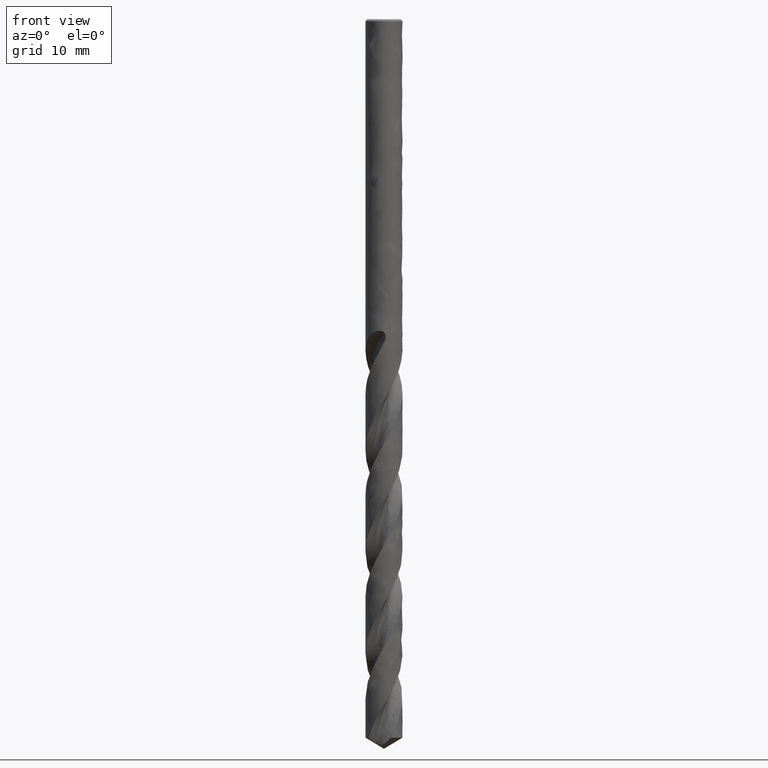
[diagram: clean part render]
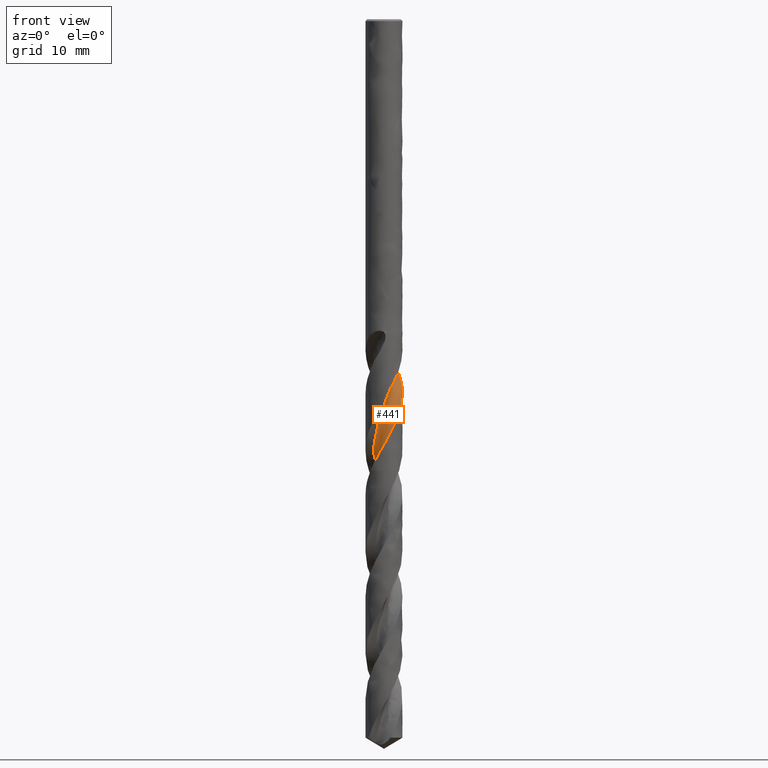
[diagram: same view with one face highlighted and labeled with its STEP entity id]
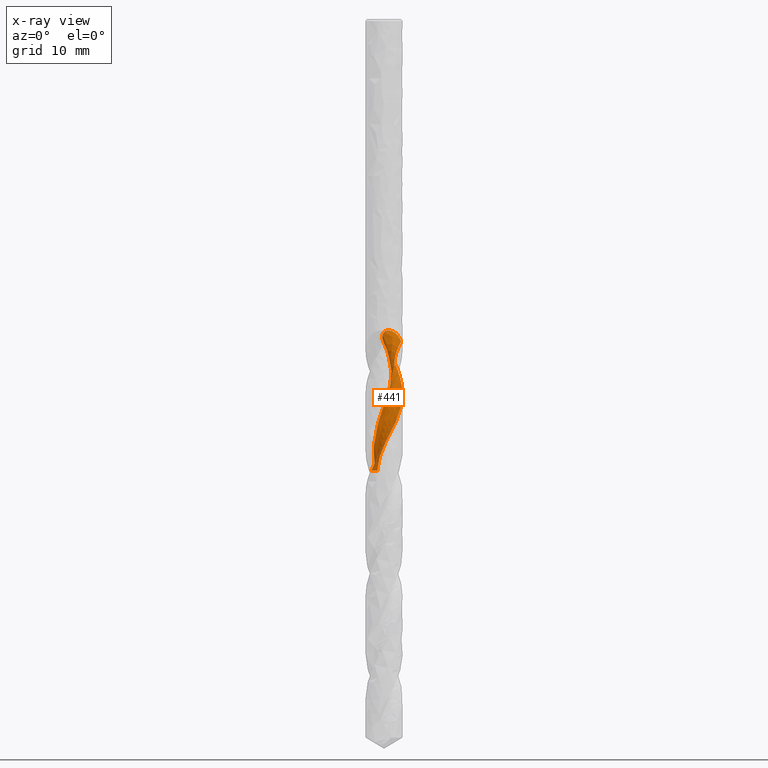
[diagram: x-ray of the same camera — body ghosted, the highlighted face saturated]
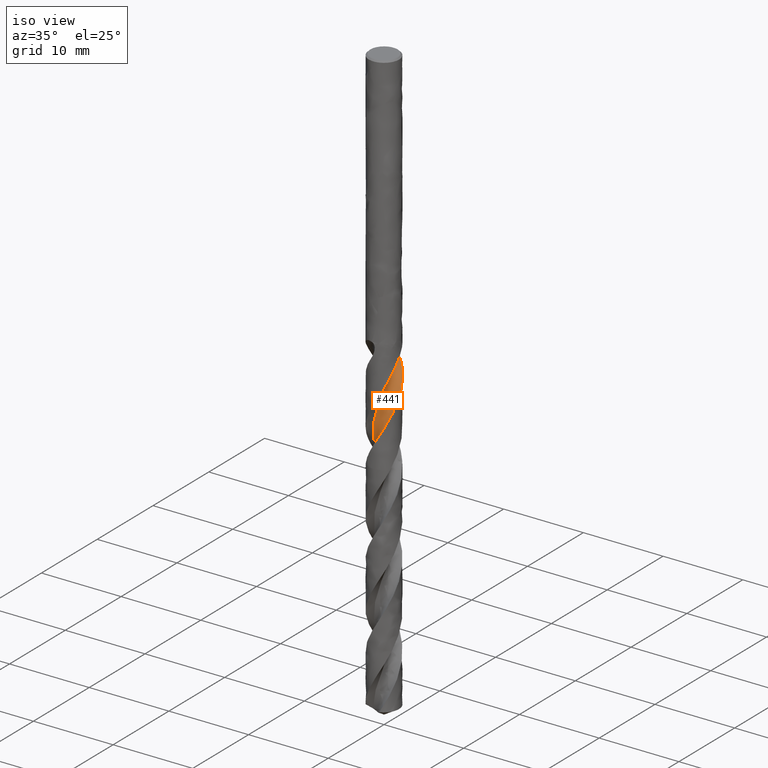
[diagram: same view with one face highlighted and labeled with its STEP entity id]
A machine part, front view. The second image highlights one B-rep face of the part: STEP entity #441.
The next image is the same camera in x-ray: the body ghosted, the highlighted face saturated — about 0% of this face is hidden behind the body in this view.
A second angle (iso view) of the same face is appended — the face is thin or edge-on in the first view.
In plain terms, the highlighted face is a freeform B-spline surface patch.
Its self-contained STEP definition (entity closure, byte-faithful):
#131 = VERTEX_POINT('', #132);
#132 = CARTESIAN_POINT('', (-0.96395103952715, 0.480244470293103, -46.4));
#138 = EDGE_CURVE('', #131, #139, #141, .T.);
#139 = VERTEX_POINT('', #140);
#140 = CARTESIAN_POINT('', (1.75888895391081, 0.718546900216404, -33.1325859257356));
#141 = (
   BOUNDED_CURVE ()
   B_SPLINE_CURVE (3, (#142, #143, #144, #145, #146, #147, #148, #149, #150, #151, #152, #153, #154, #155, #156, #157, #158, #159, #160, #161, #162, #163, #164, #165, #166, #167, #168, #169, #170, #171, #172, #173, #174, #175, #176, #177, #178, #179, #180, #181, #182, #183), .UNSPECIFIED., .F., .U.)
   B_SPLINE_CURVE_WITH_KNOTS ((4, 1, 1, 1, 1, 1, 1, 1, 1, 1, 1, 1, 1, 1, 1, 1, 1, 1, 1, 1, 1, 1, 1, 1, 1, 1, 1, 1, 1, 1, 1, 1, 1, 1, 1, 1, 1, 1, 1, 4), (28.65, 28.7, 29.05, 29.4, 29.75, 30.1, 30.45, 30.8, 31.15, 31.5, 31.85, 32.2, 32.55, 32.9, 33.25, 33.6, 33.95, 34.3, 34.65, 35., 35.35, 35.7, 36.05, 36.4, 36.75, 37.1, 37.45, 37.8, 38.15, 38.5, 38.85, 39.2, 39.55, 39.9, 40.25, 40.6, 40.95, 41.3, 41.65, 41.9174140742644), .UNSPECIFIED.)
   CURVE ()
   GEOMETRIC_REPRESENTATION_ITEM ()
   RATIONAL_B_SPLINE_CURVE ((1., 1., 1., 1., 1., 1., 1., 1., 1., 1., 1., 1., 1., 1., 1., 1., 1., 1., 1., 1., 1., 1., 1., 1., 1., 1., 1., 1., 1., 1., 1., 1., 1., 1., 1., 1., 1., 1., 1., 1., 1., 1.))
   REPRESENTATION_ITEM ('')
);
#142 = CARTESIAN_POINT('', (-0.96395103952715, 0.480244470293103, -46.4));
#143 = CARTESIAN_POINT('', (-0.966431226843995, 0.475446815710782, -46.3833333333333));
#144 = CARTESIAN_POINT('', (-0.985987603925968, 0.436912708861211, -46.25));
#145 = CARTESIAN_POINT('', (-1.01834154443304, 0.362430019029289, -46.));
#146 = CARTESIAN_POINT('', (-1.05253728804318, 0.253810498499353, -45.65));
#147 = CARTESIAN_POINT('', (-1.07522186693698, 0.142020868778604, -45.3));
#148 = CARTESIAN_POINT('', (-1.08610715577379, 0.0282732361351584, -44.95));
#149 = CARTESIAN_POINT('', (-1.08503184371034, -0.0861946915018232, -44.6));
#150 = CARTESIAN_POINT('', (-1.07196365038964, -0.200132786629288, -44.25));
#151 = CARTESIAN_POINT('', (-1.04700018064148, -0.312291870259042, -43.9));
#152 = CARTESIAN_POINT('', (-1.01036840283583, -0.42143712636716, -43.55));
#153 = CARTESIAN_POINT('', (-0.962422750057319, -0.526361421893064, -43.2));
#154 = CARTESIAN_POINT('', (-0.903641857582134, -0.625898391747234, -42.85));
#155 = CARTESIAN_POINT('', (-0.834623964395978, -0.718935150001063, -42.5));
#156 = CARTESIAN_POINT('', (-0.756081020541927, -0.804424491586876, -42.15));
#157 = CARTESIAN_POINT('', (-0.668831555806061, -0.881396453395895, -41.8));
#158 = CARTESIAN_POINT('', (-0.573792378422824, -0.948969109635665, -41.45));
#159 = CARTESIAN_POINT('', (-0.471969185241571, -1.00635848347411, -41.1));
#160 = CARTESIAN_POINT('', (-0.364446176005808, -1.05288746592981, -40.75));
#161 = CARTESIAN_POINT('', (-0.252374777674193, -1.08799364119964, -40.4));
#162 = CARTESIAN_POINT('', (-0.136961585967135, -1.11123593397627, -40.05));
#163 = CARTESIAN_POINT('', (-0.0194556725909972, -1.12229998540107, -39.7));
#164 = CARTESIAN_POINT('', (0.0988647068315025, -1.12100225426955, -39.35));
#165 = CARTESIAN_POINT('', (0.216705511023308, -1.10729256509168, -39.));
#166 = CARTESIAN_POINT('', (0.332771605402317, -1.08125591518208, -38.65));
#167 = CARTESIAN_POINT('', (0.445777640856792, -1.04311034989575, -38.3));
#168 = CARTESIAN_POINT('', (0.554473491465376, -0.993212723902288, -37.95));
#169 = CARTESIAN_POINT('', (0.65761498635233, -0.932028223480831, -37.6));
#170 = CARTESIAN_POINT('', (0.754137736913847, -0.860228377947967, -37.25));
#171 = CARTESIAN_POINT('', (0.842571239900489, -0.778302909190671, -36.9));
#172 = CARTESIAN_POINT('', (0.923285869101827, -0.687979521452447, -36.55));
#173 = CARTESIAN_POINT('', (0.9882217002667, -0.585442846305672, -36.2));
#174 = CARTESIAN_POINT('', (1.03535362662515, -0.473982204148104, -35.85));
#175 = CARTESIAN_POINT('', (1.06159972872685, -0.356036348122759, -35.5));
#176 = CARTESIAN_POINT('', (1.07290019592717, -0.239018818702713, -35.15));
#177 = CARTESIAN_POINT('', (1.12513734848633, -0.130640304414601, -34.8));
#178 = CARTESIAN_POINT('', (1.20833646070338, -0.0137219376855339, -34.45));
#179 = CARTESIAN_POINT('', (1.32371281994959, 0.123438139140174, -34.1));
#180 = CARTESIAN_POINT('', (1.46590175535279, 0.293594074871595, -33.75));
#181 = CARTESIAN_POINT('', (1.61508343432141, 0.491285643064204, -33.4275286419119));
#182 = CARTESIAN_POINT('', (1.71539066095585, 0.64573774262531, -33.2217239504904));
#183 = CARTESIAN_POINT('', (1.75888895391081, 0.718546900216421, -33.1325859257356));
#441 = ADVANCED_FACE('', (#442), #770, .T.);
#442 = FACE_OUTER_BOUND('', #443, .T.);
#443 = EDGE_LOOP('', (#444, #504, #536, #587, #598, #709, #717, #769));
#444 = ORIENTED_EDGE('', *, *, #445, .T.);
#445 = EDGE_CURVE('', #131, #446, #448, .T.);
#446 = VERTEX_POINT('', #447);
#447 = CARTESIAN_POINT('', (-1.30532827835453, -1.25478044990307, -46.4));
#448 = B_SPLINE_CURVE_WITH_KNOTS('', 3, (#449, #450, #451, #452, #453, #454, #455, #456, #457, #458, #459, #460, #461, #462, #463, #464, #465, #466, #467, #468, #469, #470, #471, #472, #473, #474, #475, #476, #477, #478, #479, #480, #481, #482, #483, #484, #485, #486, #487, #488, #489, #490, #491, #492, #493, #494, #495, #496, #497, #498, #499, #500, #501, #502, #503), .UNSPECIFIED., .F., .U., (4, 3, 3, 3, 3, 3, 3, 3, 3, 3, 3, 3, 3, 3, 3, 3, 3, 3, 4), (0., 0.132356608501196, 0.264451560484291, 0.396293066426297, 0.527887118072448, 0.659237692408685, 0.790346885663394, 0.921214986968328, 1.00846108702059, 1.03437436233622, 1.06035548475083, 1.19266228556895, 1.32470915070102, 1.45650385532039, 1.58805200006146, 1.71935720090433, 1.85042121126882, 1.9812439850686, 2.07099400403343), .UNSPECIFIED.);
#449 = CARTESIAN_POINT('', (-0.963951039527148, 0.480244470293104, -46.4));
#450 = CARTESIAN_POINT('', (-0.93337620817675, 0.448437956276507, -46.4));
#451 = CARTESIAN_POINT('', (-0.904701577701545, 0.414690118859166, -46.4));
#452 = CARTESIAN_POINT('', (-0.878249633427044, 0.379380498497402, -46.4));
#453 = CARTESIAN_POINT('', (-0.851849982148822, 0.344140681921214, -46.4));
#454 = CARTESIAN_POINT('', (-0.827565533024463, 0.30721356133876, -46.4));
#455 = CARTESIAN_POINT('', (-0.805668322057261, 0.269012796794148, -46.4));
#456 = CARTESIAN_POINT('', (-0.783813124515607, 0.230885326742587, -46.4));
#457 = CARTESIAN_POINT('', (-0.76425460743586, 0.191347156519327, -46.4));
#458 = CARTESIAN_POINT('', (-0.747211029023544, 0.150839502094262, -46.4));
#459 = CARTESIAN_POINT('', (-0.730199439829378, 0.110407876784844, -46.4));
#460 = CARTESIAN_POINT('', (-0.715630222784705, 0.0688604466918589, -46.4));
#461 = CARTESIAN_POINT('', (-0.703665351259459, 0.0266591156529382, -46.4));
#462 = CARTESIAN_POINT('', (-0.69172261732095, -0.015464133843332, -46.4));
#463 = CARTESIAN_POINT('', (-0.682330430666376, -0.0583945243317284, -46.4));
#464 = CARTESIAN_POINT('', (-0.675592824030318, -0.101656536523359, -46.4));
#465 = CARTESIAN_POINT('', (-0.668867598998108, -0.144839046730741, -46.4));
#466 = CARTESIAN_POINT('', (-0.664762408581908, -0.1885109520714, -46.4));
#467 = CARTESIAN_POINT('', (-0.663322557491968, -0.23219029121914, -46.4));
#468 = CARTESIAN_POINT('', (-0.661885354092078, -0.275789310011163, -46.4));
#469 = CARTESIAN_POINT('', (-0.663098388394375, -0.31955567628098, -46.4));
#470 = CARTESIAN_POINT('', (-0.666948322456207, -0.363008156083166, -46.4));
#471 = CARTESIAN_POINT('', (-0.669514965732941, -0.391976708102629, -46.4));
#472 = CARTESIAN_POINT('', (-0.673256418951325, -0.420864987045241, -46.4));
#473 = CARTESIAN_POINT('', (-0.678154369766236, -0.449531600755776, -46.4));
#474 = CARTESIAN_POINT('', (-0.679609127604961, -0.458045973925499, -46.4));
#475 = CARTESIAN_POINT('', (-0.681166213236623, -0.466543494769032, -46.4));
#476 = CARTESIAN_POINT('', (-0.682824953601737, -0.475020490182725, -46.4));
#477 = CARTESIAN_POINT('', (-0.684488036942424, -0.483519680380362, -46.4));
#478 = CARTESIAN_POINT('', (-0.686253548670824, -0.491999466933154, -46.4));
#479 = CARTESIAN_POINT('', (-0.68812072163303, -0.500456165186189, -46.4));
#480 = CARTESIAN_POINT('', (-0.697629151533064, -0.543521228869271, -46.4));
#481 = CARTESIAN_POINT('', (-0.709804794279774, -0.586081984030037, -46.4));
#482 = CARTESIAN_POINT('', (-0.724510820915612, -0.627660136102703, -46.4));
#483 = CARTESIAN_POINT('', (-0.739187955452942, -0.669156601932359, -46.4));
#484 = CARTESIAN_POINT('', (-0.756440321330727, -0.709829320675688, -46.4));
#485 = CARTESIAN_POINT('', (-0.776074796695074, -0.749223004582446, -46.4));
#486 = CARTESIAN_POINT('', (-0.795671777497397, -0.788541461171074, -46.4));
#487 = CARTESIAN_POINT('', (-0.817714656733881, -0.826732068508528, -46.4));
#488 = CARTESIAN_POINT('', (-0.841957626723584, -0.863368950078291, -46.4));
#489 = CARTESIAN_POINT('', (-0.866155243269478, -0.899937291830107, -46.4));
#490 = CARTESIAN_POINT('', (-0.892634387631025, -0.93509328265791, -46.4));
#491 = CARTESIAN_POINT('', (-0.92110088252602, -0.968446347485194, -46.4));
#492 = CARTESIAN_POINT('', (-0.949514805328481, -1.00173781567345, -46.4));
#493 = CARTESIAN_POINT('', (-0.980013648995523, -1.03335597925048, -46.4));
#494 = CARTESIAN_POINT('', (-1.01225982521054, -1.06295086027177, -46.4));
#495 = CARTESIAN_POINT('', (-1.04444676941785, -1.09249137936782, -46.4));
#496 = CARTESIAN_POINT('', (-1.07849303829817, -1.12012476119488, -46.4));
#497 = CARTESIAN_POINT('', (-1.1140231568604, -1.14554625447957, -46.4));
#498 = CARTESIAN_POINT('', (-1.14948787864649, -1.17092095693516, -46.4));
#499 = CARTESIAN_POINT('', (-1.18656098381313, -1.19418495735582, -46.4));
#500 = CARTESIAN_POINT('', (-1.2248351158549, -1.21508263264576, -46.4));
#501 = CARTESIAN_POINT('', (-1.25109280766832, -1.2294193318237, -46.4));
#502 = CARTESIAN_POINT('', (-1.27797026169169, -1.24267482117247, -46.4));
#503 = CARTESIAN_POINT('', (-1.30532827835453, -1.25478044990308, -46.4));
#504 = ORIENTED_EDGE('', *, *, #505, .T.);
#505 = EDGE_CURVE('', #446, #506, #508, .T.);
#506 = VERTEX_POINT('', #507);
#507 = CARTESIAN_POINT('', (1.8998305610442, -0.0253739890931736, -38.5472392469525));
#508 = B_SPLINE_CURVE_WITH_KNOTS('', 3, (#509, #510, #511, #512, #513, #514, #515, #516, #517, #518, #519, #520, #521, #522, #523, #524, #525, #526, #527, #528, #529, #530, #531, #532, #533, #534, #535), .UNSPECIFIED., .F., .U., (4, 1, 1, 1, 1, 1, 1, 1, 1, 1, 1, 1, 1, 1, 1, 1, 1, 1, 1, 1, 1, 1, 1, 1, 4), (28.65, 28.7, 29.05, 29.4, 29.75, 30.1, 30.45, 30.8, 31.15, 31.5, 31.85, 32.2, 32.55, 32.9, 33.25, 33.6, 33.95, 34.3, 34.65, 35., 35.35, 35.7, 36.05, 36.4, 36.5027607530475), .UNSPECIFIED.);
#509 = CARTESIAN_POINT('', (-1.30532827835453, -1.25478044990307, -46.4));
#510 = CARTESIAN_POINT('', (-1.2991340090144, -1.26141962647203, -46.3833333333333));
#511 = CARTESIAN_POINT('', (-1.24917662469697, -1.31416801236667, -46.25));
#512 = CARTESIAN_POINT('', (-1.1495347891777, -1.40750160411971, -46.));
#513 = CARTESIAN_POINT('', (-0.996883695823697, -1.52304942163968, -45.65));
#514 = CARTESIAN_POINT('', (-0.832705801988859, -1.62216317476124, -45.3));
#515 = CARTESIAN_POINT('', (-0.658757411542367, -1.70370144097815, -44.95));
#516 = CARTESIAN_POINT('', (-0.476907054621174, -1.76670911619367, -44.6));
#517 = CARTESIAN_POINT('', (-0.289115868538179, -1.81042837541237, -44.25));
#518 = CARTESIAN_POINT('', (-0.0974169146305664, -1.83430758318904, -43.9));
#519 = CARTESIAN_POINT('', (0.0961063563644484, -1.83800805105079, -43.55));
#520 = CARTESIAN_POINT('', (0.289342267924163, -1.82140856097256, -43.2));
#521 = CARTESIAN_POINT('', (0.480173480198611, -1.78460759680235, -42.85));
#522 = CARTESIAN_POINT('', (0.666499715821069, -1.72792324907516, -42.5));
#523 = CARTESIAN_POINT('', (0.846260410631105, -1.65189078268501, -42.15));
#524 = CARTESIAN_POINT('', (1.01745705033469, -1.55725788118361, -41.8));
#525 = CARTESIAN_POINT('', (1.17817495613689, -1.44497760571056, -41.45));
#526 = CARTESIAN_POINT('', (1.32660428651518, -1.31619913081361, -41.1));
#527 = CARTESIAN_POINT('', (1.46106003010745, -1.17225634221648, -40.75));
#528 = CARTESIAN_POINT('', (1.58000077021621, -1.01465440726805, -40.4));
#529 = CARTESIAN_POINT('', (1.6820460266266, -0.84505444004282, -40.05));
#530 = CARTESIAN_POINT('', (1.76599194300402, -0.665256443369278, -39.7));
#531 = CARTESIAN_POINT('', (1.8308252947128, -0.477180581336087, -39.35));
#532 = CARTESIAN_POINT('', (1.87573509749907, -0.282847405644915, -39.));
#533 = CARTESIAN_POINT('', (1.89438107153297, -0.13109367225475, -38.7324130823175));
#534 = CARTESIAN_POINT('', (1.89906775392138, -0.0449460119830068, -38.5814928313017));
#535 = CARTESIAN_POINT('', (1.8998305610442, -0.0253739890931695, -38.5472392469525));
#536 = ORIENTED_EDGE('', *, *, #537, .F.);
#537 = EDGE_CURVE('', #538, #506, #540, .T.);
#538 = VERTEX_POINT('', #539);
#539 = CARTESIAN_POINT('', (1.28039807057198, 1.40377376413562, -35.7397321612101));
#540 = B_SPLINE_CURVE_WITH_KNOTS('', 3, (#541, #542, #543, #544, #545, #546, #547, #548, #549, #550, #551, #552, #553, #554, #555, #556, #557, #558, #559, #560, #561, #562, #563, #564, #565, #566, #567, #568, #569, #570, #571, #572, #573, #574, #575, #576, #577, #578, #579, #580, #581, #582, #583, #584, #585, #586), .UNSPECIFIED., .F., .U., (4, 3, 3, 3, 3, 3, 3, 3, 3, 3, 3, 3, 3, 3, 3, 4), (0., 0.131367445252244, 0.426860119382218, 0.623871718991579, 0.919274784355049, 1.11624229441769, 1.31321360037919, 1.51015659043777, 1.70708407825923, 1.90400112580175, 2.19922233130223, 2.64161574660911, 3.08381642082228, 3.17134428687576, 3.21026800024567, 3.23372368174076), .UNSPECIFIED.);
#541 = CARTESIAN_POINT('', (1.28039807057198, 1.40377376413562, -35.7397321612101));
#542 = CARTESIAN_POINT('', (1.29582549604991, 1.38970223329461, -35.7782221090152));
#543 = CARTESIAN_POINT('', (1.31107073855273, 1.37533108994948, -35.8166772284345));
#544 = CARTESIAN_POINT('', (1.32612811378341, 1.36065580726107, -35.8550881780231));
#545 = CARTESIAN_POINT('', (1.35999757104315, 1.32764581367486, -35.9414882308522));
#546 = CARTESIAN_POINT('', (1.39292224788722, 1.29308647604948, -36.0276866032639));
#547 = CARTESIAN_POINT('', (1.42468727076964, 1.25708638545923, -36.113690938848));
#548 = CARTESIAN_POINT('', (1.44586572464543, 1.233084316866, -36.1710319601666));
#549 = CARTESIAN_POINT('', (1.46653253610041, 1.20843862513266, -36.2282986058287));
#550 = CARTESIAN_POINT('', (1.4866303138902, 1.18318650677857, -36.2854915142853));
#551 = CARTESIAN_POINT('', (1.51676531699596, 1.14532298410524, -36.3712476855394));
#552 = CARTESIAN_POINT('', (1.5456296330949, 1.10608395783723, -36.4568643129482));
#553 = CARTESIAN_POINT('', (1.57306290087736, 1.06558580596933, -36.5423230818583));
#554 = CARTESIAN_POINT('', (1.591354730183, 1.03858263277699, -36.5993048904409));
#555 = CARTESIAN_POINT('', (1.6090170368045, 1.01100948973066, -36.6562250600055));
#556 = CARTESIAN_POINT('', (1.62598700780901, 0.982937561819858, -36.7130992706692));
#557 = CARTESIAN_POINT('', (1.64295730585372, 0.954865092915267, -36.7699745773957));
#558 = CARTESIAN_POINT('', (1.65923739848551, 0.926288831419241, -36.8268135226904));
#559 = CARTESIAN_POINT('', (1.67475613788976, 0.897324845638732, -36.883656387646));
#560 = CARTESIAN_POINT('', (1.69027264637456, 0.868365023619059, -36.9404910810711));
#561 = CARTESIAN_POINT('', (1.70502568808182, 0.839025488572187, -36.9973470817475));
#562 = CARTESIAN_POINT('', (1.71900092597171, 0.809342830022234, -37.0542087402796));
#563 = CARTESIAN_POINT('', (1.73297506381001, 0.779662507923104, -37.1110659229839));
#564 = CARTESIAN_POINT('', (1.74617448638357, 0.749633287063078, -37.1679377158817));
#565 = CARTESIAN_POINT('', (1.75858901405916, 0.71928066818902, -37.2248018988388));
#566 = CARTESIAN_POINT('', (1.77100288356796, 0.688929658484972, -37.2816630670926));
#567 = CARTESIAN_POINT('', (1.78263519579591, 0.6582461781599, -37.3385237459266));
#568 = CARTESIAN_POINT('', (1.79346618907686, 0.627279067591219, -37.395376257296));
#569 = CARTESIAN_POINT('', (1.80970418844298, 0.580852677255572, -37.4806104569331));
#570 = CARTESIAN_POINT('', (1.82414435955775, 0.533775807445821, -37.5658542270085));
#571 = CARTESIAN_POINT('', (1.83673150133983, 0.48622771618437, -37.6510874013594));
#572 = CARTESIAN_POINT('', (1.85559352255706, 0.414976186509132, -37.7788105946668));
#573 = CARTESIAN_POINT('', (1.87030755976191, 0.342609157255745, -37.9065958761914));
#574 = CARTESIAN_POINT('', (1.88076714088389, 0.269657118896259, -38.0343235853858));
#575 = CARTESIAN_POINT('', (1.89122216499613, 0.196736864137469, -38.1619956464229));
#576 = CARTESIAN_POINT('', (1.89743358735857, 0.12317551044754, -38.2897207569544));
#577 = CARTESIAN_POINT('', (1.89935414206426, 0.0495362798699944, -38.4173937824621));
#578 = CARTESIAN_POINT('', (1.89973429086282, 0.034960352952331, -38.4426649955718));
#579 = CARTESIAN_POINT('', (1.89994664563494, 0.0203799036849946, -38.4679366816716));
#580 = CARTESIAN_POINT('', (1.89999114956294, 0.00579927430639445, -38.4932080021155));
#581 = CARTESIAN_POINT('', (1.900010940496, -0.000684743461601987, -38.5044461789132));
#582 = CARTESIAN_POINT('', (1.89999753941857, -0.00716886596041877, -38.5156844027514));
#583 = CARTESIAN_POINT('', (1.89995094764144, -0.0136527124212837, -38.5269225992309));
#584 = CARTESIAN_POINT('', (1.89992287113511, -0.017559920246082, -38.5336948091354));
#585 = CARTESIAN_POINT('', (1.89988274194958, -0.0214670401939055, -38.5404670304973));
#586 = CARTESIAN_POINT('', (1.89983056104419, -0.025373989093227, -38.5472392469526));
#587 = ORIENTED_EDGE('', *, *, #588, .T.);
#588 = EDGE_CURVE('', #538, #589, #591, .T.);
#589 = VERTEX_POINT('', #590);
#590 = CARTESIAN_POINT('', (0.864206171825234, 1.69208383142774, -34.8514155961111));
#591 = B_SPLINE_CURVE_WITH_KNOTS('', 3, (#592, #593, #594, #595, #596, #597), .UNSPECIFIED., .F., .U., (4, 1, 1, 4), (39.3102678387899, 39.55, 39.9, 40.1985844038889), .UNSPECIFIED.);
#592 = CARTESIAN_POINT('', (1.28039807057198, 1.40377376413559, -35.7397321612101));
#593 = CARTESIAN_POINT('', (1.24225099117843, 1.42978584063618, -35.6598214408068));
#594 = CARTESIAN_POINT('', (1.14507922387982, 1.48843482020702, -35.4632440537367));
#595 = CARTESIAN_POINT('', (0.993734559564485, 1.55953750087753, -35.167138532037));
#596 = CARTESIAN_POINT('', (0.904307154908509, 1.64575304747076, -34.9509437307407));
#597 = CARTESIAN_POINT('', (0.864206171825234, 1.69208383142774, -34.8514155961111));
#598 = ORIENTED_EDGE('', *, *, #599, .F.);
#599 = EDGE_CURVE('', #600, #589, #602, .T.);
#600 = VERTEX_POINT('', #601);
#601 = CARTESIAN_POINT('', (0.427751960259633, 1.8512234496392, -32.));
#602 = B_SPLINE_CURVE_WITH_KNOTS('', 3, (#603, #604, #605, #606, #607, #608, #609, #610, #611, #612, #613, #614, #615, #616, #617, #618, #619, #620, #621, #622, #623, #624, #625, #626, #627, #628, #629, #630, #631, #632, #633, #634, #635, #636, #637, #638, #639, #640, #641, #642, #643, #644, #645, #646, #647, #648, #649, #650, #651, #652, #653, #654, #655, #656, #657, #658, #659, #660, #661, #662, #663, #664, #665, #666, #667, #668, #669, #670, #671, #672, #673, #674, #675, #676, #677, #678, #679, #680, #681, #682, #683, #684, #685, #686, #687, #688, #689, #690, #691, #692, #693, #694, #695, #696, #697, #698, #699, #700, #701, #702, #703, #704, #705, #706, #707, #708), .UNSPECIFIED., .F., .U., (4, 3, 3, 3, 3, 3, 3, 3, 3, 3, 3, 3, 3, 3, 3, 3, 3, 3, 3, 3, 3, 3, 3, 3, 3, 3, 3, 3, 3, 3, 3, 3, 3, 3, 3, 4), (0., 0.0873629605212161, 0.174507815838116, 0.261410331657644, 0.319349699367411, 0.37723188191172, 0.435081472253333, 0.473752127815154, 0.512476702920778, 0.570461454747365, 0.62847253783245, 0.686531689473661, 0.773565024721625, 0.831776572720489, 0.857700674376559, 0.988843334027458, 1.12033938845752, 1.25207487416912, 1.38395532561015, 1.51590956818053, 1.64788857450238, 1.73573251009251, 1.77471080818673, 1.9067551739594, 2.03878248633691, 2.17077982768571, 2.30273736410078, 2.43465001899647, 2.56651274924828, 2.69832321369126, 2.83008418729105, 2.96179505951588, 3.09345426730499, 3.22505850398501, 3.42255413557538, 3.47636369661806), .UNSPECIFIED.);
#603 = CARTESIAN_POINT('', (0.427751960258633, 1.85122344963943, -32.));
#604 = CARTESIAN_POINT('', (0.399378575813954, 1.85777953060186, -32.0000270578561));
#605 = CARTESIAN_POINT('', (0.37079713800439, 1.86369178588485, -32.0015256611667));
#606 = CARTESIAN_POINT('', (0.342329611499141, 1.86890621409713, -32.0047569995351));
#607 = CARTESIAN_POINT('', (0.31393315533821, 1.87410762427608, -32.0079802707351));
#608 = CARTESIAN_POINT('', (0.285531271582478, 1.87863446969218, -32.012946389041));
#609 = CARTESIAN_POINT('', (0.2575856930654, 1.88245839548395, -32.0198908184965));
#610 = CARTESIAN_POINT('', (0.229717827884664, 1.88627168739205, -32.0268159363181));
#611 = CARTESIAN_POINT('', (0.202155097192997, 1.889404621159, -32.0357545737368));
#612 = CARTESIAN_POINT('', (0.175501908426569, 1.89187713135358, -32.0468275400815));
#613 = CARTESIAN_POINT('', (0.157731779564213, 1.89352559545129, -32.0542100728268));
#614 = CARTESIAN_POINT('', (0.140303500680769, 1.89488819359186, -32.0625646859088));
#615 = CARTESIAN_POINT('', (0.123417697512506, 1.89598736070176, -32.0718737237982));
#616 = CARTESIAN_POINT('', (0.106548560343308, 1.89708544295252, -32.0811735738265));
#617 = CARTESIAN_POINT('', (0.0901657504409504, 1.89792440557852, -32.0914577172941));
#618 = CARTESIAN_POINT('', (0.0744643942087731, 1.89854024292221, -32.1026536514154));
#619 = CARTESIAN_POINT('', (0.0587718790700453, 1.89915573350124, -32.1138432813487));
#620 = CARTESIAN_POINT('', (0.0437059445774316, 1.89955088650091, -32.1259828579464));
#621 = CARTESIAN_POINT('', (0.0294325042844673, 1.89977201992543, -32.1389467184937));
#622 = CARTESIAN_POINT('', (0.0198911524790009, 1.89991984075601, -32.1476126568869));
#623 = CARTESIAN_POINT('', (0.0106839970036198, 1.89999050261956, -32.1566625285304));
#624 = CARTESIAN_POINT('', (0.00184896658313239, 1.89999910034784, -32.1660486830708));
#625 = CARTESIAN_POINT('', (-0.00699838275987742, 1.90000771006417, -32.1754479249811));
#626 = CARTESIAN_POINT('', (-0.0154860633837973, 1.89995416124878, -32.1851985334646));
#627 = CARTESIAN_POINT('', (-0.0235868590679218, 1.89985358911668, -32.1952478323229));
#628 = CARTESIAN_POINT('', (-0.035716692024401, 1.89970299611198, -32.2102952821332));
#629 = CARTESIAN_POINT('', (-0.0470083242260945, 1.89944692520589, -32.2260522939049));
#630 = CARTESIAN_POINT('', (-0.0574153040939263, 1.89913229735472, -32.2423365516695));
#631 = CARTESIAN_POINT('', (-0.0678270098400011, 1.89881752662896, -32.2586282042231));
#632 = CARTESIAN_POINT('', (-0.0773836244564499, 1.89844347426823, -32.2754923121718));
#633 = CARTESIAN_POINT('', (-0.0860838901830413, 1.89804888341975, -32.292757025156));
#634 = CARTESIAN_POINT('', (-0.0947913650357021, 1.89765396560939, -32.3100360438518));
#635 = CARTESIAN_POINT('', (-0.102662921077522, 1.89723757514246, -32.3277568375848));
#636 = CARTESIAN_POINT('', (-0.109728671272793, 1.89682883220936, -32.3457692962973));
#637 = CARTESIAN_POINT('', (-0.120320555379602, 1.8962161077771, -32.3727707993068));
#638 = CARTESIAN_POINT('', (-0.129137301324025, 1.89562017283204, -32.4005178873763));
#639 = CARTESIAN_POINT('', (-0.136349304706665, 1.89510128149026, -32.4286134806947));
#640 = CARTESIAN_POINT('', (-0.14117299530614, 1.89475422517945, -32.4474049928705));
#641 = CARTESIAN_POINT('', (-0.145290105608318, 1.89443999295445, -32.4663899327876));
#642 = CARTESIAN_POINT('', (-0.148758175525728, 1.89416762859465, -32.4854793978832));
#643 = CARTESIAN_POINT('', (-0.150302655962686, 1.89404633305118, -32.4939807563029));
#644 = CARTESIAN_POINT('', (-0.151719093191493, 1.89393320914587, -32.5025064045665));
#645 = CARTESIAN_POINT('', (-0.153012547139731, 1.89382870408541, -32.5110497811229));
#646 = CARTESIAN_POINT('', (-0.1595557629147, 1.89330004269694, -32.5542682941062));
#647 = CARTESIAN_POINT('', (-0.162972235906951, 1.89299784902426, -32.5980343351397));
#648 = CARTESIAN_POINT('', (-0.163866714003292, 1.89292041566511, -32.6417393340877));
#649 = CARTESIAN_POINT('', (-0.164763602481503, 1.89284277364353, -32.6855621064475));
#650 = CARTESIAN_POINT('', (-0.16313062823443, 1.89298758224214, -32.7294841638269));
#651 = CARTESIAN_POINT('', (-0.159457389514113, 1.89329695001322, -32.7731609016104));
#652 = CARTESIAN_POINT('', (-0.155777462469511, 1.89360688108881, -32.8169171670827));
#653 = CARTESIAN_POINT('', (-0.150040760958747, 1.89408107653566, -32.8605323172866));
#654 = CARTESIAN_POINT('', (-0.142621695060472, 1.8946395573032, -32.9038092655251));
#655 = CARTESIAN_POINT('', (-0.135194464996757, 1.89519865263994, -32.9471338370318));
#656 = CARTESIAN_POINT('', (-0.126067789999008, 1.89584237758223, -32.9901901638079));
#657 = CARTESIAN_POINT('', (-0.115532307680557, 1.89648419078093, -33.0328643541152));
#658 = CARTESIAN_POINT('', (-0.104990930438864, 1.89712636309367, -33.0755624219318));
#659 = CARTESIAN_POINT('', (-0.0930266918137154, 1.89776695179842, -33.117927531347));
#660 = CARTESIAN_POINT('', (-0.0798713750819791, 1.89832045857451, -33.159895248543));
#661 = CARTESIAN_POINT('', (-0.066713589502043, 1.89887406922678, -33.2018708417882));
#662 = CARTESIAN_POINT('', (-0.0523521985566535, 1.89934086834799, -33.2434845669624));
#663 = CARTESIAN_POINT('', (-0.0369769814668154, 1.89964015088164, -33.2847022496219));
#664 = CARTESIAN_POINT('', (-0.026743387372083, 1.89983935040846, -33.3121363360089));
#665 = CARTESIAN_POINT('', (-0.0160562880750427, 1.8999645293869, -33.3394054441342));
#666 = CARTESIAN_POINT('', (-0.00496500884417214, 1.89999351280137, -33.3665048520507));
#667 = CARTESIAN_POINT('', (-4.35628137455019E-5, 1.90000637338374, -33.3785294590181));
#668 = CARTESIAN_POINT('', (0.0049578911532801, 1.90000031576415, -33.3905216420917));
#669 = CARTESIAN_POINT('', (0.0100352791988164, 1.89997349801817, -33.4024812148512));
#670 = CARTESIAN_POINT('', (0.0272356321396755, 1.89988264920146, -33.4429959186006));
#671 = CARTESIAN_POINT('', (0.0453114835696172, 1.89955285615619, -33.483147710358));
#672 = CARTESIAN_POINT('', (0.0641205370459333, 1.89891773300722, -33.5229361224979));
#673 = CARTESIAN_POINT('', (0.0829271613521771, 1.89828269188376, -33.5627193960049));
#674 = CARTESIAN_POINT('', (0.102474713642829, 1.89734209686813, -33.6021552434968));
#675 = CARTESIAN_POINT('', (0.122634062792268, 1.89603820811797, -33.6412538593541));
#676 = CARTESIAN_POINT('', (0.1427888356429, 1.89473461535874, -33.6803435995801));
#677 = CARTESIAN_POINT('', (0.163561898194954, 1.89306740607678, -33.7191088491734));
#678 = CARTESIAN_POINT('', (0.184831045245246, 1.89098849407224, -33.7575695241845));
#679 = CARTESIAN_POINT('', (0.206093778401286, 1.8889102089815, -33.7960186010483));
#680 = CARTESIAN_POINT('', (0.227857881595609, 1.88641993448952, -33.8341736192015));
#681 = CARTESIAN_POINT('', (0.250010463514299, 1.88347943130085, -33.8720599116725));
#682 = CARTESIAN_POINT('', (0.272155510876331, 1.88053992823885, -33.9099333182225));
#683 = CARTESIAN_POINT('', (0.294693860143198, 1.87714980623487, -33.9475465080974));
#684 = CARTESIAN_POINT('', (0.317517116275166, 1.87328131386407, -33.9849306286694));
#685 = CARTESIAN_POINT('', (0.340331734547971, 1.86941428559166, -34.0223006005692));
#686 = CARTESIAN_POINT('', (0.363435463320985, 1.86506845528672, -34.0594486451062));
#687 = CARTESIAN_POINT('', (0.386721600650568, 1.86022751393217, -34.0964120947484));
#688 = CARTESIAN_POINT('', (0.409998508163662, 1.85538849135873, -34.1333608933624));
#689 = CARTESIAN_POINT('', (0.433461121151648, 1.85005408159117, -34.1701315430062));
#690 = CARTESIAN_POINT('', (0.457010892252809, 1.8442182745983, -34.2067620756215));
#691 = CARTESIAN_POINT('', (0.480551821127113, 1.83838465877446, -34.2433788545795));
#692 = CARTESIAN_POINT('', (0.504183332515099, 1.83204910919476, -34.2798608557659));
#693 = CARTESIAN_POINT('', (0.527807506129622, 1.82521758606291, -34.316250739248));
#694 = CARTESIAN_POINT('', (0.551422696783954, 1.81838866057961, -34.3526267856799));
#695 = CARTESIAN_POINT('', (0.575033719330317, 1.81106315459858, -34.3889155574267));
#696 = CARTESIAN_POINT('', (0.598542066919887, 1.80326021253937, -34.4251646939094));
#697 = CARTESIAN_POINT('', (0.622041193209102, 1.7954603312343, -34.4613996114354));
#698 = CARTESIAN_POINT('', (0.645439597946633, 1.7871827648538, -34.4976002412874));
#699 = CARTESIAN_POINT('', (0.668643155850538, 1.77845897623051, -34.5338149723441));
#700 = CARTESIAN_POINT('', (0.691837025671594, 1.76973883001358, -34.5700145828181));
#701 = CARTESIAN_POINT('', (0.714839182230757, 1.76057177218748, -34.6062327074069));
#702 = CARTESIAN_POINT('', (0.73756355649928, 1.75099971448463, -34.6425147535349));
#703 = CARTESIAN_POINT('', (0.771665533471115, 1.73663513451872, -34.6969624354347));
#704 = CARTESIAN_POINT('', (0.805148061440961, 1.72135303226024, -34.7515685023273));
#705 = CARTESIAN_POINT('', (0.837753322903375, 1.70533555934437, -34.8064699917571));
#706 = CARTESIAN_POINT('', (0.846636936140013, 1.70097144668185, -34.8214284241184));
#707 = CARTESIAN_POINT('', (0.855456186642398, 1.69655275374585, -34.8364094222219));
#708 = CARTESIAN_POINT('', (0.864206171825235, 1.69208383142774, -34.8514155961111));
#709 = ORIENTED_EDGE('', *, *, #710, .T.);
#710 = EDGE_CURVE('', #600, #711, #713, .T.);
#711 = VERTEX_POINT('', #712);
#712 = CARTESIAN_POINT('', (0.429320594921007, 1.85086029369498, -32.));
#713 = LINE('', #714, #715);
#714 = CARTESIAN_POINT('', (0.427751960259633, 1.8512234496392, -32.));
#715 = VECTOR('', #716, 0.00161012326878398);
#716 = DIRECTION('', (0.00156863466137336, -0.000363155944213656, 0.));
#717 = ORIENTED_EDGE('', *, *, #718, .T.);
#718 = EDGE_CURVE('', #711, #139, #719, .T.);
#719 = B_SPLINE_CURVE_WITH_KNOTS('', 3, (#720, #721, #722, #723, #724, #725, #726, #727, #728, #729, #730, #731, #732, #733, #734, #735, #736, #737, #738, #739, #740, #741, #742, #743, #744, #745, #746, #747, #748, #749, #750, #751, #752, #753, #754, #755, #756, #757, #758, #759, #760, #761, #762, #763, #764, #765, #766, #767, #768), .UNSPECIFIED., .F., .U., (4, 3, 3, 3, 3, 3, 3, 3, 3, 3, 3, 3, 3, 3, 3, 3, 4), (0., 0.0880016086724664, 0.175761601736798, 0.263337861647212, 0.350775888872783, 0.438110000910127, 0.56877252488704, 0.699242540137486, 0.829585294035129, 0.95984429919139, 1.09004957565462, 1.28444062159858, 1.47878600142891, 1.67314286239593, 1.86756522417851, 2.06209631355298, 2.19380329009097), .UNSPECIFIED.);
#720 = CARTESIAN_POINT('', (0.429320594935948, 1.85086029369152, -32.));
#721 = CARTESIAN_POINT('', (0.457895790219004, 1.84423206795177, -32.0000272267115));
#722 = CARTESIAN_POINT('', (0.486348456741657, 1.83693169883662, -32.0015403004786));
#723 = CARTESIAN_POINT('', (0.514461749502838, 1.829024086309, -32.0042949941917));
#724 = CARTESIAN_POINT('', (0.542497854921314, 1.8211381847778, -32.0070421246681));
#725 = CARTESIAN_POINT('', (0.570264716046735, 1.81263032098753, -32.0110298212824));
#726 = CARTESIAN_POINT('', (0.597620881984084, 1.80356571308521, -32.0160528128846));
#727 = CARTESIAN_POINT('', (0.624919775416375, 1.7945200827254, -32.0210652884184));
#728 = CARTESIAN_POINT('', (0.651860784503206, 1.78490384550031, -32.0271178559303));
#729 = CARTESIAN_POINT('', (0.678350551114959, 1.7747790087225, -32.0340430178265));
#730 = CARTESIAN_POINT('', (0.704798505578496, 1.76467015325485, -32.040957248864));
#731 = CARTESIAN_POINT('', (0.730835700297256, 1.75403983921358, -32.0487515403533));
#732 = CARTESIAN_POINT('', (0.756399353960722, 1.74294578726012, -32.0572903615623));
#733 = CARTESIAN_POINT('', (0.781932626656473, 1.7318649199648, -32.0658190348615));
#734 = CARTESIAN_POINT('', (0.807024045640769, 1.72030844838657, -32.0751007692976));
#735 = CARTESIAN_POINT('', (0.831630537136022, 1.70832978364918, -32.0850256909709));
#736 = CARTESIAN_POINT('', (0.868444861000807, 1.69040823464676, -32.0998745889083));
#737 = CARTESIAN_POINT('', (0.904237481570498, 1.67151000103208, -32.1161871547064));
#738 = CARTESIAN_POINT('', (0.938915404355345, 1.65179837252137, -32.1336759940906));
#739 = CARTESIAN_POINT('', (0.973542235193177, 1.63211578570055, -32.151139066682));
#740 = CARTESIAN_POINT('', (1.00711946881821, 1.6115878454518, -32.1698067877032));
#741 = CARTESIAN_POINT('', (1.03959166211308, 1.59036133506351, -32.1894631470181));
#742 = CARTESIAN_POINT('', (1.07203218180663, 1.56915552915986, -32.2091003333846));
#743 = CARTESIAN_POINT('', (1.10341689112507, 1.54722218685914, -32.2297532021497));
#744 = CARTESIAN_POINT('', (1.13371302794816, 1.52469497613805, -32.2512557945778));
#745 = CARTESIAN_POINT('', (1.16398969868471, 1.50218223975857, -32.2727445710092));
#746 = CARTESIAN_POINT('', (1.19321601673186, 1.47904928375258, -32.2951084374868));
#747 = CARTESIAN_POINT('', (1.22137401733634, 1.45541935873332, -32.3182173372495));
#748 = CARTESIAN_POINT('', (1.24952040344577, 1.43179918048731, -32.3413167051492));
#749 = CARTESIAN_POINT('', (1.27662871868791, 1.40765796616517, -32.3651848068991));
#750 = CARTESIAN_POINT('', (1.30269141849479, 1.38311064929023, -32.3897180003679));
#751 = CARTESIAN_POINT('', (1.34160194204039, 1.3464625292443, -32.4263450347578));
#752 = CARTESIAN_POINT('', (1.37824387765477, 1.30884938889465, -32.4645127231334));
#753 = CARTESIAN_POINT('', (1.41262386445219, 1.27062733229699, -32.5039556450706));
#754 = CARTESIAN_POINT('', (1.44699577474395, 1.23241425477946, -32.5433893011234));
#755 = CARTESIAN_POINT('', (1.47916594494598, 1.19352722952983, -32.5841659801299));
#756 = CARTESIAN_POINT('', (1.509170208009, 1.15429861095736, -32.626089009876));
#757 = CARTESIAN_POINT('', (1.53917624360217, 1.11506767491723, -32.6680145162647));
#758 = CARTESIAN_POINT('', (1.56705957215978, 1.07543873448387, -32.711150325199));
#759 = CARTESIAN_POINT('', (1.59288327205659, 1.03572336152193, -32.7553431105229));
#760 = CARTESIAN_POINT('', (1.61871567487953, 0.995994603957532, -32.7995507893961));
#761 = CARTESIAN_POINT('', (1.64252149393756, 0.956127126171881, -32.8448712108123));
#762 = CARTESIAN_POINT('', (1.66439105752091, 0.91640733718386, -32.891175277977));
#763 = CARTESIAN_POINT('', (1.68627285130743, 0.876665335540015, -32.9375052399496));
#764 = CARTESIAN_POINT('', (1.70624117987719, 0.837026206488207, -32.9848727842183));
#765 = CARTESIAN_POINT('', (1.72440688696985, 0.797759918879703, -33.033172584566));
#766 = CARTESIAN_POINT('', (1.73670595117364, 0.771174738909668, -33.0658738905199));
#767 = CARTESIAN_POINT('', (1.74818631632776, 0.744745261126258, -33.0990223499454));
#768 = CARTESIAN_POINT('', (1.75888895391081, 0.718546900216404, -33.1325859257356));
#769 = ORIENTED_EDGE('', *, *, #138, .F.);
#770 = (
   BOUNDED_SURFACE ()
   B_SPLINE_SURFACE (3, 2, ((#771, #772, #773, #774, #775), (#776, #777, #778, #779, #780), (#781, #782, #783, #784, #785), (#786, #787, #788, #789, #790), (#791, #792, #793, #794, #795), (#796, #797, #798, #799, #800), (#801, #802, #803, #804, #805), (#806, #807, #808, #809, #810), (#811, #812, #813, #814, #815), (#816, #817, #818, #819, #820), (#821, #822, #823, #824, #825), (#826, #827, #828, #829, #830), (#831, #832, #833, #834, #835), (#836, #837, #838, #839, #840), (#841, #842, #843, #844, #845), (#846, #847, #848, #849, #850), (#851, #852, #853, #854, #855), (#856, #857, #858, #859, #860), (#861, #862, #863, #864, #865), (#866, #867, #868, #869, #870), (#871, #872, #873, #874, #875), (#876, #877, #878, #879, #880), (#881, #882, #883, #884, #885), (#886, #887, #888, #889, #890), (#891, #892, #893, #894, #895), (#896, #897, #898, #899, #900), (#901, #902, #903, #904, #905), (#906, #907, #908, #909, #910), (#911, #912, #913, #914, #915), (#916, #917, #918, #919, #920), (#921, #922, #923, #924, #925), (#926, #927, #928, #929, #930), (#931, #932, #933, #934, #935), (#936, #937, #938, #939, #940), (#941, #942, #943, #944, #945), (#946, #947, #948, #949, #950), (#951, #952, #953, #954, #955), (#956, #957, #958, #959, #960), (#961, #962, #963, #964, #965), (#966, #967, #968, #969, #970), (#971, #972, #973, #974, #975), (#976, #977, #978, #979, #980), (#981, #982, #983, #984, #985), (#986, #987, #988, #989, #990)), .UNSPECIFIED., .F., .F., .U.)
   B_SPLINE_SURFACE_WITH_KNOTS ((4, 1, 1, 1, 1, 1, 1, 1, 1, 1, 1, 1, 1, 1, 1, 1, 1, 1, 1, 1, 1, 1, 1, 1, 1, 1, 1, 1, 1, 1, 1, 1, 1, 1, 1, 1, 1, 1, 1, 1, 1, 4), (3, 2, 3), (28.65, 28.7, 29.05, 29.4, 29.75, 30.1, 30.45, 30.8, 31.15, 31.5, 31.85, 32.2, 32.55, 32.9, 33.25, 33.6, 33.95, 34.3, 34.65, 35., 35.35, 35.7, 36.05, 36.4, 36.75, 37.1, 37.45, 37.8, 38.15, 38.5, 38.85, 39.2, 39.55, 39.9, 40.25, 40.6, 40.95, 41.3, 41.65, 42., 42.35, 43.05), (0., 0.5, 1.), .UNSPECIFIED.)
   GEOMETRIC_REPRESENTATION_ITEM ()
   RATIONAL_B_SPLINE_SURFACE (((1., 0.887010833178222, 1., 0.887010833178222, 1.), (1., 0.887010833178222, 1., 0.887010833178222, 1.), (1., 0.887010833178222, 1., 0.887010833178222, 1.), (1., 0.887010833178222, 1., 0.887010833178222, 1.), (1., 0.887010833178222, 1., 0.887010833178222, 1.), (1., 0.887010833178222, 1., 0.887010833178222, 1.), (1., 0.887010833178222, 1., 0.887010833178222, 1.), (1., 0.887010833178222, 1., 0.887010833178222, 1.), (1., 0.887010833178222, 1., 0.887010833178222, 1.), (1., 0.887010833178222, 1., 0.887010833178222, 1.), (1., 0.887010833178222, 1., 0.887010833178222, 1.), (1., 0.887010833178222, 1., 0.887010833178222, 1.), (1., 0.887010833178221, 1., 0.887010833178221, 1.), (1., 0.887010833178222, 1., 0.887010833178222, 1.), (1., 0.887010833178221, 1., 0.887010833178221, 1.), (1., 0.887010833178222, 1., 0.887010833178222, 1.), (1., 0.887010833178222, 1., 0.887010833178222, 1.), (1., 0.887010833178222, 1., 0.887010833178222, 1.), (1., 0.887010833178222, 1., 0.887010833178222, 1.), (1., 0.887010833178221, 1., 0.887010833178221, 1.), (1., 0.887010833178222, 1., 0.887010833178222, 1.), (1., 0.887010833178222, 1., 0.887010833178222, 1.), (1., 0.887010833178222, 1., 0.887010833178222, 1.), (1., 0.887010833178222, 1., 0.887010833178222, 1.), (1., 0.887010833178221, 1., 0.887010833178221, 1.), (1., 0.887010833178222, 1., 0.887010833178222, 1.), (1., 0.887010833178222, 1., 0.887010833178222, 1.), (1., 0.887010833178222, 1., 0.887010833178222, 1.), (1., 0.887010833178222, 1., 0.887010833178222, 1.), (1., 0.887010833178221, 1., 0.887010833178221, 1.), (1., 0.887010833178222, 1., 0.887010833178222, 1.), (1., 0.887010833178222, 1., 0.887010833178222, 1.), (1., 0.887010833178222, 1., 0.887010833178222, 1.), (1., 0.887010833178222, 1., 0.887010833178222, 1.), (1., 0.887010833178221, 1., 0.887010833178221, 1.), (1., 0.887010833178222, 1., 0.887010833178222, 1.), (1., 0.887010833178222, 1., 0.887010833178222, 1.), (1., 0.887010833178222, 1., 0.887010833178222, 1.), (1., 0.887010833178222, 1., 0.887010833178222, 1.), (1., 0.887010833178221, 1., 0.887010833178221, 1.), (1., 0.887010833178222, 1., 0.887010833178222, 1.), (1., 0.887010833178222, 1., 0.887010833178222, 1.), (1., 0.887010833178222, 1., 0.887010833178222, 1.), (1., 0.887010833178222, 1., 0.887010833178222, 1.)))
   REPRESENTATION_ITEM ('')
   SURFACE ()
);
#771 = CARTESIAN_POINT('', (-1.30532827835453, -1.25478044990307, -46.4));
#772 = CARTESIAN_POINT('', (-0.79151302508384, -1.0274227152809, -46.4));
#773 = CARTESIAN_POINT('', (-0.683041256270689, -0.476122860975918, -46.4));
#774 = CARTESIAN_POINT('', (-0.574569487457539, 0.0751769933290664, -46.4));
#775 = CARTESIAN_POINT('', (-0.963951039527149, 0.480244470293105, -46.4));
#776 = CARTESIAN_POINT('', (-1.2991340090144, -1.26141962647203, -46.3833333333333));
#777 = CARTESIAN_POINT('', (-0.786420379203662, -1.03146845173038, -46.3833333333333));
#778 = CARTESIAN_POINT('', (-0.680704897424491, -0.479583458393027, -46.3833333333333));
#779 = CARTESIAN_POINT('', (-0.574989415645319, 0.0723015349443222, -46.3833333333333));
#780 = CARTESIAN_POINT('', (-0.966431226843995, 0.475446815710783, -46.3833333333333));
#781 = CARTESIAN_POINT('', (-1.24917662469697, -1.31416801236667, -46.25));
#782 = CARTESIAN_POINT('', (-0.745432308086047, -1.06353296305345, -46.25));
#783 = CARTESIAN_POINT('', (-0.661804651147656, -0.507131417892912, -46.25));
#784 = CARTESIAN_POINT('', (-0.578176994209265, 0.0492701272676306, -46.25));
#785 = CARTESIAN_POINT('', (-0.985987603925968, 0.436912708861211, -46.25));
#786 = CARTESIAN_POINT('', (-1.1495347891777, -1.40750160411971, -46.));
#787 = CARTESIAN_POINT('', (-0.664940451744454, -1.1190746051535, -46.));
#788 = CARTESIAN_POINT('', (-0.623254124434902, -0.556683232779728, -46.));
#789 = CARTESIAN_POINT('', (-0.58156779712535, 0.00570813959404594, -46.));
#790 = CARTESIAN_POINT('', (-1.01834154443304, 0.362430019029289, -46.));
#791 = CARTESIAN_POINT('', (-0.996883695823697, -1.52304942163968, -45.65));
#792 = CARTESIAN_POINT('', (-0.544539337451489, -1.18472656990837, -45.65));
#793 = CARTESIAN_POINT('', (-0.562223127998242, -0.620133748393012, -45.65));
#794 = CARTESIAN_POINT('', (-0.579906918544997, -0.0555409268776557, -45.65));
#795 = CARTESIAN_POINT('', (-1.05253728804318, 0.253810498499353, -45.65));
#796 = CARTESIAN_POINT('', (-0.832705801988859, -1.62216317476124, -45.3));
#797 = CARTESIAN_POINT('', (-0.417716915746572, -1.23751330991474, -45.3));
#798 = CARTESIAN_POINT('', (-0.494775792374928, -0.676948216670587, -45.3));
#799 = CARTESIAN_POINT('', (-0.571834669003283, -0.116383123426437, -45.3));
#800 = CARTESIAN_POINT('', (-1.07522186693698, 0.142020868778604, -45.3));
#801 = CARTESIAN_POINT('', (-0.658757411542367, -1.70370144097815, -44.95));
#802 = CARTESIAN_POINT('', (-0.285838490373254, -1.27681265161694, -44.95));
#803 = CARTESIAN_POINT('', (-0.421627809010485, -0.726482004467197, -44.95));
#804 = CARTESIAN_POINT('', (-0.557417127647717, -0.176151357317457, -44.95));
#805 = CARTESIAN_POINT('', (-1.08610715577379, 0.0282732361351584, -44.95));
#806 = CARTESIAN_POINT('', (-0.476907054621174, -1.76670911619367, -44.6));
#807 = CARTESIAN_POINT('', (-0.150329090780946, -1.30214631983317, -44.6));
#808 = CARTESIAN_POINT('', (-0.343559230430005, -0.768167039935975, -44.6));
#809 = CARTESIAN_POINT('', (-0.536789370079063, -0.23418776003878, -44.6));
#810 = CARTESIAN_POINT('', (-1.08503184371034, -0.0861946915018232, -44.6));
#811 = CARTESIAN_POINT('', (-0.289115868538179, -1.81042837541237, -44.25));
#812 = CARTESIAN_POINT('', (-0.0126584107234545, -1.31318561999035, -44.25));
#813 = CARTESIAN_POINT('', (-0.26140634687926, -0.801518200606134, -44.25));
#814 = CARTESIAN_POINT('', (-0.510154283035065, -0.289850781221924, -44.25));
#815 = CARTESIAN_POINT('', (-1.07196365038964, -0.200132786629288, -44.25));
#816 = CARTESIAN_POINT('', (-0.0974169146305664, -1.83430758318904, -43.9));
#817 = CARTESIAN_POINT('', (0.125674789315367, -1.3097555550409, -43.9));
#818 = CARTESIAN_POINT('', (-0.17605293234933, -0.826138846703745, -43.9));
#819 = CARTESIAN_POINT('', (-0.477780654014027, -0.342522138366593, -43.9));
#820 = CARTESIAN_POINT('', (-1.04700018064148, -0.312291870259042, -43.9));
#821 = CARTESIAN_POINT('', (0.0961063563644484, -1.83800805105079, -43.55));
#822 = CARTESIAN_POINT('', (0.263158654363901, -1.29183732681272, -43.55));
#823 = CARTESIAN_POINT('', (-0.0884209491557331, -0.841725437755552, -43.55));
#824 = CARTESIAN_POINT('', (-0.440000552675367, -0.391613548698385, -43.55));
#825 = CARTESIAN_POINT('', (-1.01036840283583, -0.42143712636716, -43.55));
#826 = CARTESIAN_POINT('', (0.289342267924163, -1.82140856097256, -43.2));
#827 = CARTESIAN_POINT('', (0.398284415678965, -1.25956918808227, -43.2));
#828 = CARTESIAN_POINT('', (0.000539193691467717, -0.848071179735576, -43.2));
#829 = CARTESIAN_POINT('', (-0.397206028296029, -0.436573171388879, -43.2));
#830 = CARTESIAN_POINT('', (-0.962422750057319, -0.526361421893064, -43.2));
#831 = CARTESIAN_POINT('', (0.480173480198611, -1.78460759680235, -42.85));
#832 = CARTESIAN_POINT('', (0.529562610734147, -1.21324562863702, -42.85));
#833 = CARTESIAN_POINT('', (0.0898587279695881, -0.845068659826395, -42.85));
#834 = CARTESIAN_POINT('', (-0.349845154794971, -0.476891691015768, -42.85));
#835 = CARTESIAN_POINT('', (-0.903641857582134, -0.625898391747234, -42.85));
#836 = CARTESIAN_POINT('', (0.666499715821069, -1.72792324907516, -42.5));
#837 = CARTESIAN_POINT('', (0.655539171990976, -1.15331489583831, -42.5));
#838 = CARTESIAN_POINT('', (0.178560855100952, -0.832711436176124, -42.5));
#839 = CARTESIAN_POINT('', (-0.298417461789071, -0.512107976513933, -42.5));
#840 = CARTESIAN_POINT('', (-0.834623964395978, -0.718935150001063, -42.5));
#841 = CARTESIAN_POINT('', (0.846260410631106, -1.65189078268501, -42.15));
#842 = CARTESIAN_POINT('', (0.774811214425472, -1.08037486753159, -42.15));
#843 = CARTESIAN_POINT('', (0.265671208844082, -0.811094560734639, -42.15));
#844 = CARTESIAN_POINT('', (-0.243468796737309, -0.541814253937685, -42.15));
#845 = CARTESIAN_POINT('', (-0.756081020541927, -0.804424491586876, -42.15));
#846 = CARTESIAN_POINT('', (1.01745705033469, -1.55725788118361, -41.8));
#847 = CARTESIAN_POINT('', (0.886042353982143, -0.995167312421309, -41.8));
#848 = CARTESIAN_POINT('', (0.350228342286888, -0.780414024250901, -41.8));
#849 = CARTESIAN_POINT('', (-0.185585669408367, -0.565660736080493, -41.8));
#850 = CARTESIAN_POINT('', (-0.668831555806061, -0.881396453395895, -41.8));
#851 = CARTESIAN_POINT('', (1.17817495613689, -1.44497760571056, -41.45));
#852 = CARTESIAN_POINT('', (0.987977393124384, -0.898570589983304, -41.45));
#853 = CARTESIAN_POINT('', (0.43129412878219, -0.740965123665734, -41.45));
#854 = CARTESIAN_POINT('', (-0.125389135560004, -0.583359657348164, -41.45));
#855 = CARTESIAN_POINT('', (-0.573792378422824, -0.948969109635665, -41.45));
#856 = CARTESIAN_POINT('', (1.32660428651518, -1.31619913081361, -41.1));
#857 = CARTESIAN_POINT('', (1.07945621515188, -0.791590858730009, -41.1));
#858 = CARTESIAN_POINT('', (0.507963966600086, -0.693139763447348, -41.1));
#859 = CARTESIAN_POINT('', (-0.0635282819517058, -0.594688668164686, -41.1));
#860 = CARTESIAN_POINT('', (-0.471969185241571, -1.00635848347411, -41.1));
#861 = CARTESIAN_POINT('', (1.46106003010745, -1.17225634221648, -40.75));
#862 = CARTESIAN_POINT('', (1.15942673690508, -0.675351876965965, -40.75));
#863 = CARTESIAN_POINT('', (0.579376678978937, -0.637422713333001, -40.75));
#864 = CARTESIAN_POINT('', (-0.000673378947201238, -0.599493549700037, -40.75));
#865 = CARTESIAN_POINT('', (-0.364446176005808, -1.05288746592981, -40.75));
#866 = CARTESIAN_POINT('', (1.58000077021621, -1.01465440726805, -40.4));
#867 = CARTESIAN_POINT('', (1.22695677611768, -0.551083497773658, -40.4));
#868 = CARTESIAN_POINT('', (0.644724001922262, -0.574386856999619, -40.4));
#869 = CARTESIAN_POINT('', (0.0624912277268492, -0.597690216225579, -40.4));
#870 = CARTESIAN_POINT('', (-0.252374777674193, -1.08799364119964, -40.4));
#871 = CARTESIAN_POINT('', (1.6820460266266, -0.84505444004282, -40.05));
#872 = CARTESIAN_POINT('', (1.2812447087194, -0.420108965254934, -40.05));
#873 = CARTESIAN_POINT('', (0.703259562725537, -0.504687473099998, -40.05));
#874 = CARTESIAN_POINT('', (0.125274416731669, -0.589265980945063, -40.05));
#875 = CARTESIAN_POINT('', (-0.136961585967135, -1.11123593397627, -40.05));
#876 = CARTESIAN_POINT('', (1.76599194300402, -0.665256443369278, -39.7));
#877 = CARTESIAN_POINT('', (1.32162877127535, -0.28383116574714, -39.7));
#878 = CARTESIAN_POINT('', (0.754307230881903, -0.429055614802703, -39.7));
#879 = CARTESIAN_POINT('', (0.186985690488455, -0.574280063858267, -39.7));
#880 = CARTESIAN_POINT('', (-0.0194556725909972, -1.12229998540107, -39.7));
#881 = CARTESIAN_POINT('', (1.8308252947128, -0.477180581336087, -39.35));
#882 = CARTESIAN_POINT('', (1.34759499642332, -0.143717874618845, -39.35));
#883 = CARTESIAN_POINT('', (0.797268826092019, -0.3482906103502, -39.35));
#884 = CARTESIAN_POINT('', (0.246942655760718, -0.552863346081555, -39.35));
#885 = CARTESIAN_POINT('', (0.0988647068315025, -1.12100225426955, -39.35));
#886 = CARTESIAN_POINT('', (1.87573509749907, -0.282847405644915, -39.));
#887 = CARTESIAN_POINT('', (1.35878333773919, -0.0012865166073295, -39.));
#888 = CARTESIAN_POINT('', (0.831630811763755, -0.263251916063412, -39.));
#889 = CARTESIAN_POINT('', (0.304478285788318, -0.525217315519495, -39.));
#890 = CARTESIAN_POINT('', (0.216705511023308, -1.10729256509168, -39.));
#891 = CARTESIAN_POINT('', (1.90012377452553, -0.0843556140933666, -38.65));
#892 = CARTESIAN_POINT('', (1.35499321981279, 0.141912775198736, -38.65));
#893 = CARTESIAN_POINT('', (0.856970965247974, -0.174849816709548, -38.65));
#894 = CARTESIAN_POINT('', (0.358948710683164, -0.491612408617832, -38.65));
#895 = CARTESIAN_POINT('', (0.332771605402317, -1.08125591518208, -38.65));
#896 = CARTESIAN_POINT('', (1.90360994205089, 0.116136375461176, -38.3));
#897 = CARTESIAN_POINT('', (1.33618355596163, 0.284310507948552, -38.3));
#898 = CARTESIAN_POINT('', (0.87296096711343, -0.0840372566014483, -38.3));
#899 = CARTESIAN_POINT('', (0.409738378265234, -0.452385021151448, -38.3));
#900 = CARTESIAN_POINT('', (0.445777640856792, -1.04311034989575, -38.3));
#901 = CARTESIAN_POINT('', (1.88605191181421, 0.316447444917122, -37.95));
#902 = CARTESIAN_POINT('', (1.30248546812217, 0.424346548148783, -37.95));
#903 = CARTESIAN_POINT('', (0.87937973598608, 0.00820528593708885, -37.95));
#904 = CARTESIAN_POINT('', (0.456274003849986, -0.407935976274606, -37.95));
#905 = CARTESIAN_POINT('', (0.554473491465376, -0.993212723902288, -37.95));
#906 = CARTESIAN_POINT('', (1.84748288856895, 0.514344663753553, -37.6));
#907 = CARTESIAN_POINT('', (1.25415947086636, 0.560442620893896, -37.6));
#908 = CARTESIAN_POINT('', (0.876081903507832, 0.100861232337911, -37.6));
#909 = CARTESIAN_POINT('', (0.498004336149301, -0.358720156218074, -37.6));
#910 = CARTESIAN_POINT('', (0.65761498635233, -0.932028223480831, -37.6));
#911 = CARTESIAN_POINT('', (1.78836442308118, 0.707763110690176, -37.25));
#912 = CARTESIAN_POINT('', (1.1917516856883, 0.691184930932153, -37.25));
#913 = CARTESIAN_POINT('', (0.863128727732216, 0.192959534181123, -37.25));
#914 = CARTESIAN_POINT('', (0.534505769776135, -0.305265862569907, -37.25));
#915 = CARTESIAN_POINT('', (0.754137736913847, -0.860228377947967, -37.25));
#916 = CARTESIAN_POINT('', (1.70864061973775, 0.894097622173375, -36.9));
#917 = CARTESIAN_POINT('', (1.11549901583023, 0.814722058276122, -36.9));
#918 = CARTESIAN_POINT('', (0.840307623842443, 0.283320947808885, -36.9));
#919 = CARTESIAN_POINT('', (0.565116231854652, -0.248080162658352, -36.9));
#920 = CARTESIAN_POINT('', (0.842571239900489, -0.778302909190671, -36.9));
#921 = CARTESIAN_POINT('', (1.61125641146303, 1.07295793391833, -36.55));
#922 = CARTESIAN_POINT('', (1.02752906082538, 0.93109010221064, -36.55));
#923 = CARTESIAN_POINT('', (0.8089281316082, 0.371556604284668, -36.55));
#924 = CARTESIAN_POINT('', (0.590327202391016, -0.187976893641303, -36.55));
#925 = CARTESIAN_POINT('', (0.923285869101827, -0.687979521452447, -36.55));
#926 = CARTESIAN_POINT('', (1.48561436130266, 1.23373926709853, -36.2));
#927 = CARTESIAN_POINT('', (0.921460178481284, 1.03165191884972, -36.2));
#928 = CARTESIAN_POINT('', (0.763414897189021, 0.453611325657215, -36.2));
#929 = CARTESIAN_POINT('', (0.605369615896757, -0.124429267535286, -36.2));
#930 = CARTESIAN_POINT('', (0.9882217002667, -0.585442846305672, -36.2));
#931 = CARTESIAN_POINT('', (1.33577778513241, 1.37137567735059, -35.85));
#932 = CARTESIAN_POINT('', (0.800708480456713, 1.11325007407482, -35.85));
#933 = CARTESIAN_POINT('', (0.705249451086678, 0.526892195655552, -35.85));
#934 = CARTESIAN_POINT('', (0.609790421716642, -0.0594656827637144, -35.85));
#935 = CARTESIAN_POINT('', (1.03535362662515, -0.473982204148104, -35.85));
#936 = CARTESIAN_POINT('', (1.16386582507819, 1.47960875612385, -35.5));
#937 = CARTESIAN_POINT('', (0.667439395847877, 1.17167605167302, -35.5));
#938 = CARTESIAN_POINT('', (0.634944598013814, 0.588404384075075, -35.5));
#939 = CARTESIAN_POINT('', (0.602449800179751, 0.00513271647713168, -35.5));
#940 = CARTESIAN_POINT('', (1.06159972872685, -0.356036348122759, -35.5));
#941 = CARTESIAN_POINT('', (0.984974758791059, 1.56365291069359, -35.15));
#942 = CARTESIAN_POINT('', (0.53179363569065, 1.21222596298279, -35.15));
#943 = CARTESIAN_POINT('', (0.559731724716692, 0.639431503256227, -35.15));
#944 = CARTESIAN_POINT('', (0.587669813742734, 0.0666370435296623, -35.15));
#945 = CARTESIAN_POINT('', (1.07290019592717, -0.239018818702713, -35.15));
#946 = CARTESIAN_POINT('', (0.842904314451362, 1.70763029780032, -34.8));
#947 = CARTESIAN_POINT('', (0.415870433912697, 1.29914030069408, -34.8));
#948 = CARTESIAN_POINT('', (0.505549278713345, 0.71503438764493, -34.8));
#949 = CARTESIAN_POINT('', (0.595228123513994, 0.130928474595779, -34.8));
#950 = CARTESIAN_POINT('', (1.12513734848633, -0.130640304414601, -34.8));
#951 = CARTESIAN_POINT('', (0.704815533491657, 1.90545890996495, -34.45));
#952 = CARTESIAN_POINT('', (0.29705231779725, 1.42462522651027, -34.45));
#953 = CARTESIAN_POINT('', (0.457044840429113, 0.814810284154863, -34.45));
#954 = CARTESIAN_POINT('', (0.617037363060977, 0.204995341799455, -34.45));
#955 = CARTESIAN_POINT('', (1.20833646070338, -0.0137219376855339, -34.45));
#956 = CARTESIAN_POINT('', (0.552867331178023, 2.16567818738381, -34.1));
#957 = CARTESIAN_POINT('', (0.161794398974374, 1.5928364793624, -34.1));
#958 = CARTESIAN_POINT('', (0.406728636347384, 0.943919782001524, -34.1));
#959 = CARTESIAN_POINT('', (0.651662873720394, 0.295003084640648, -34.1));
#960 = CARTESIAN_POINT('', (1.32371281994959, 0.123438139140174, -34.1));
#961 = CARTESIAN_POINT('', (0.363832741184028, 2.4870040864562, -33.75));
#962 = CARTESIAN_POINT('', (-0.00622093091284752, 1.80039924989164, -33.75));
#963 = CARTESIAN_POINT('', (0.343958758077775, 1.10344867255875, -33.75));
#964 = CARTESIAN_POINT('', (0.694138447068399, 0.406498095225849, -33.75));
#965 = CARTESIAN_POINT('', (1.46590175535279, 0.293594074871595, -33.75));
#966 = CARTESIAN_POINT('', (0.115630893015351, 2.86467309102117, -33.4));
#967 = CARTESIAN_POINT('', (-0.222130096087609, 2.04159552529409, -33.4));
#968 = CARTESIAN_POINT('', (0.258363830018054, 1.2928200235991, -33.4));
#969 = CARTESIAN_POINT('', (0.738857756123716, 0.544044521904102, -33.4));
#970 = CARTESIAN_POINT('', (1.62781873287469, 0.508162119852819, -33.4));
#971 = CARTESIAN_POINT('', (-0.213359704477922, 3.28873381785816, -33.05));
#972 = CARTESIAN_POINT('', (-0.500193483129541, 2.30708098468402, -33.05));
#973 = CARTESIAN_POINT('', (0.139408345363036, 1.50906757474448, -33.05));
#974 = CARTESIAN_POINT('', (0.779010173855613, 0.711054164804941, -33.05));
#975 = CARTESIAN_POINT('', (1.799565027448, 0.777263622312144, -33.05));
#976 = CARTESIAN_POINT('', (-0.786133996620912, 3.89651444469812, -32.5833333333333));
#977 = CARTESIAN_POINT('', (-0.97045141211339, 2.67683886686984, -32.5833333333333));
#978 = CARTESIAN_POINT('', (-0.0770717955016147, 1.82627770773597, -32.5833333333333));
#979 = CARTESIAN_POINT('', (0.816307821110161, 0.975716548602105, -32.5833333333333));
#980 = CARTESIAN_POINT('', (2.02546823021233, 1.21966844932114, -32.5833333333333));
#981 = CARTESIAN_POINT('', (-1.39303536858911, 4.37179234194964, -32.2333333333333));
#982 = CARTESIAN_POINT('', (-1.45082162916899, 2.94911025919642, -32.2333333333333));
#983 = CARTESIAN_POINT('', (-0.318573530121816, 2.08575760662451, -32.2333333333333));
#984 = CARTESIAN_POINT('', (0.813674568925353, 1.2224049540526, -32.2333333333333));
#985 = CARTESIAN_POINT('', (2.17032248893868, 1.654689561253, -32.2333333333333));
#986 = CARTESIAN_POINT('', (-1.89414663702198, 4.66561695842231, -32.));
#987 = CARTESIAN_POINT('', (-1.83699198325388, 3.1040689197489, -32.));
#988 = CARTESIAN_POINT('', (-0.525064152489906, 2.2552201120104, -32.));
#989 = CARTESIAN_POINT('', (0.78686367827407, 1.4063713042719, -32.));
#990 = CARTESIAN_POINT('', (2.23469080434469, 1.99415999465835, -32.));